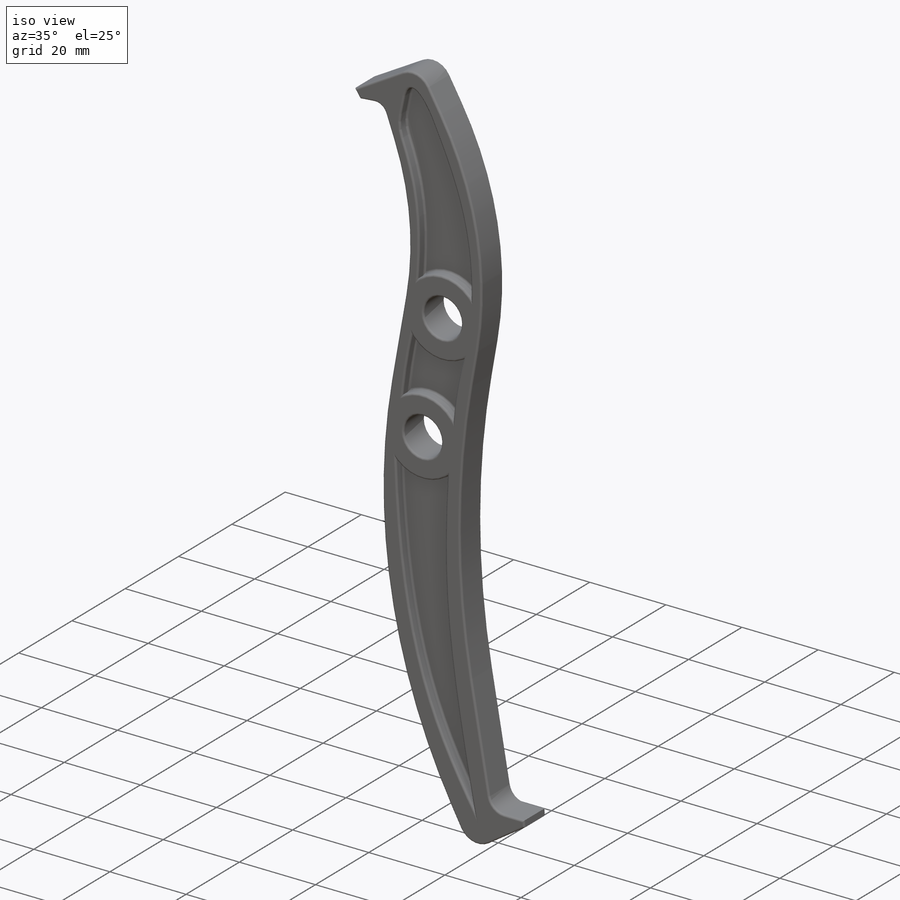
[diagram: iso view]
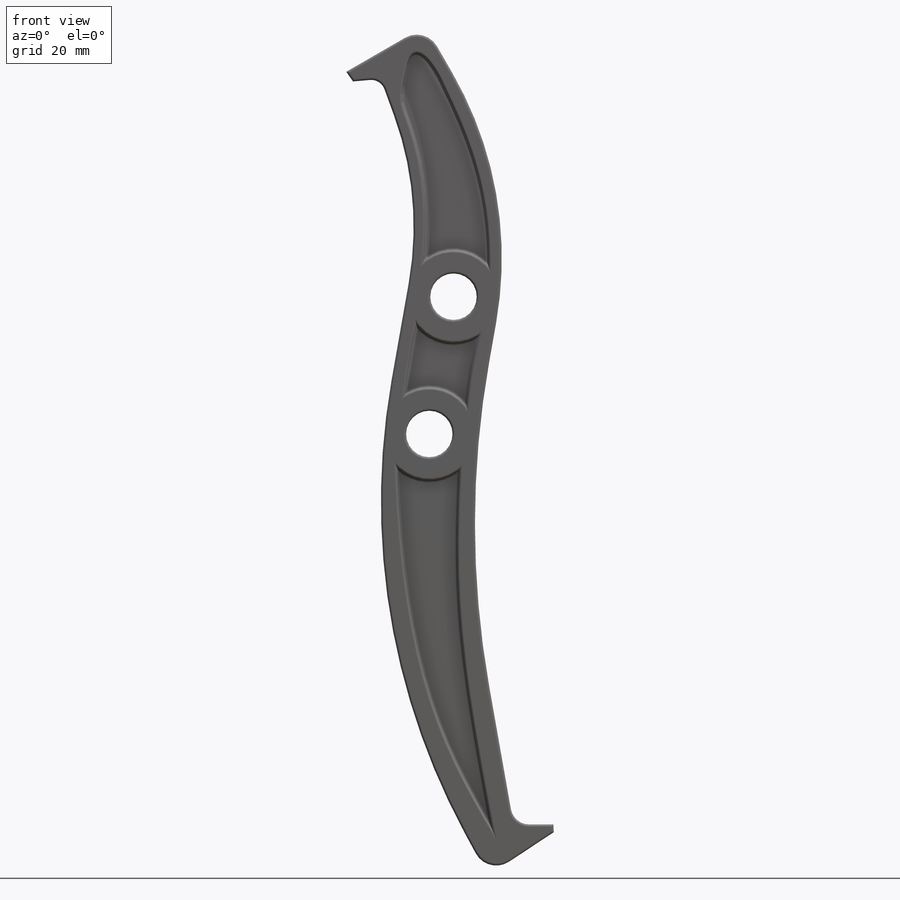
[diagram: front view]
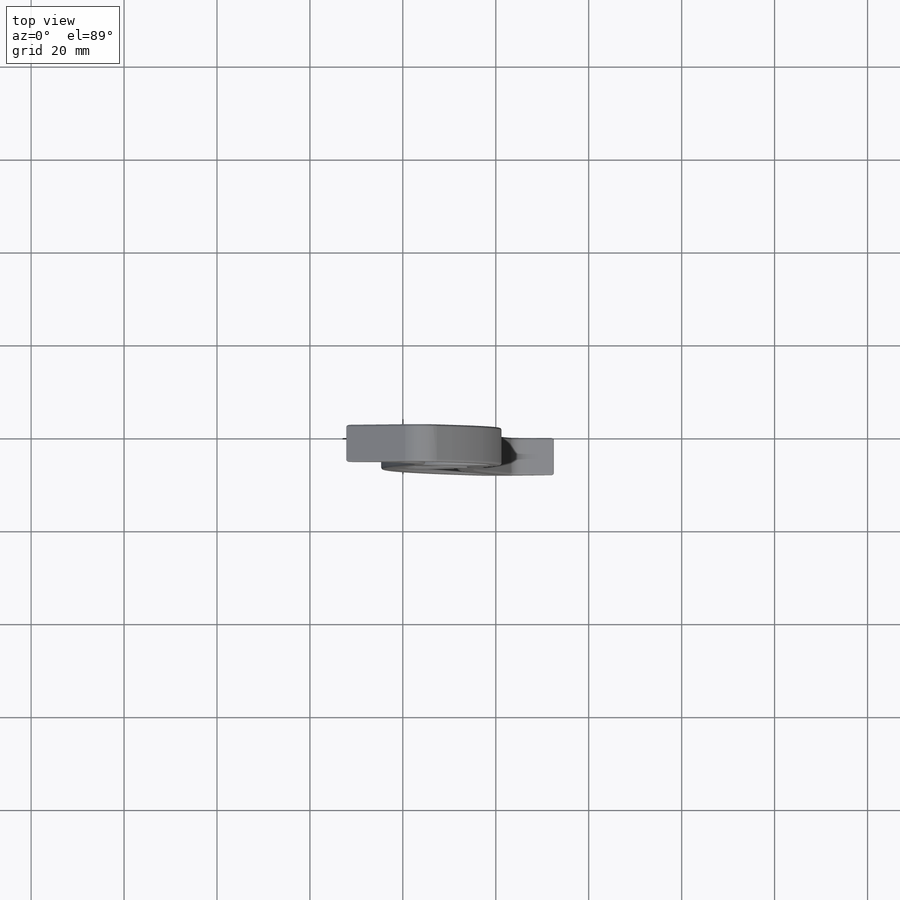
[diagram: top view]
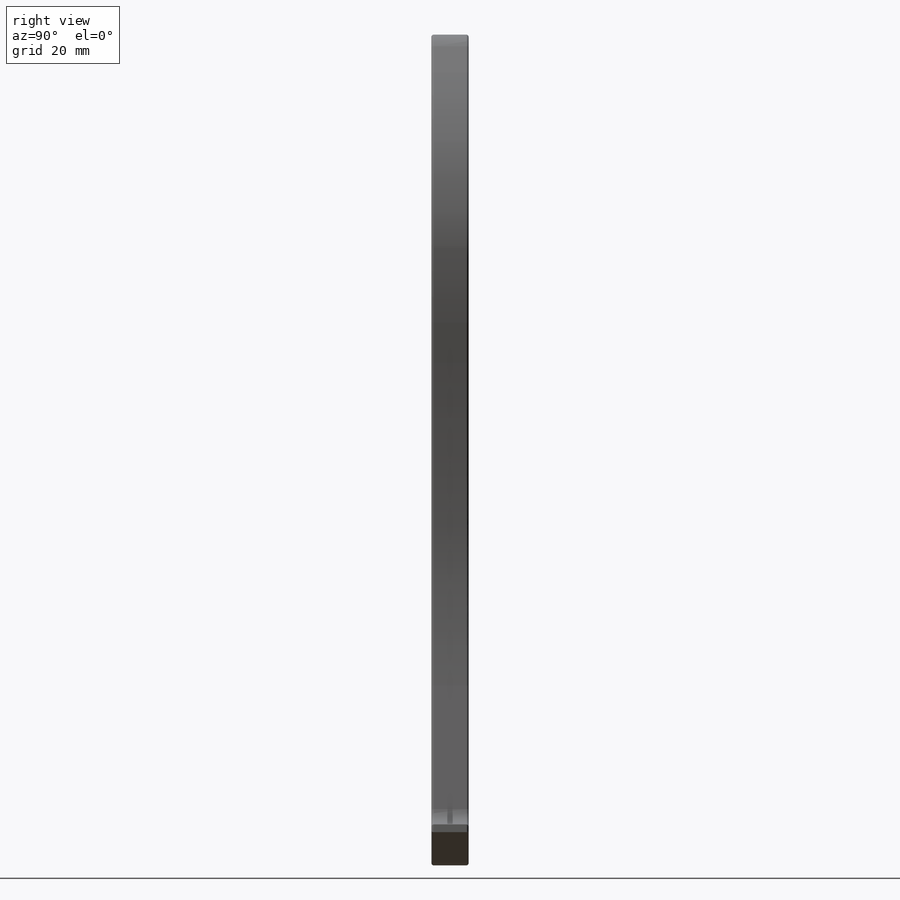
[diagram: right view]
SOLIDWORKS PART (.sldprt)
format: sldprt  version: not decoded by parser v0  size: 1,107,456 bytes
history: native  units: mm
features: fillet x10, plane x4, sketch x3, chamfer x2, cut_extrude x2, material x1, extrude x1 (+12 scaffold rows collapsed)
feature tree (35):
  scaffold x12  (default folders/planes/origin — collapsed)
  material  "Material <sin especificar>"
  plane  "Alzado"
  plane  "Planta"
  plane  "Vista lateral"
  sketch  "Sketch1"  dims[c1.D1=10.0mm c1.D2=60.0mm c1.D4=60.0mm c2.D2=10.0mm c2.D4=20.0mm c2.D5=20.0mm c2.D1=30.0mm c3.D2=10.0mm c3.D3=10.0mm c3.D4=30.0mm c3.D1=10.0mm c4.D2=10.0mm c4.D21=10.0mm c4.D22=10.0mm c4.D3=~39.456221mm c4.D4=~39.456221mm c5.D4=82.0deg c5.D3=~11.167352mm c5.D1=10.0mm c5.D2=10.0mm c6.D3=110.0deg c7.D3=67.0mm c7.D4=75.0mm c7.D5=25.0mm c7.D6=~65.205417mm c8.D6=10.0deg c9.D6=14.0mm c9.D7=87.0mm c9.D3=115.0mm c9.D4=30.0mm c10.D3=14.0mm c10.D4=14.0mm c11.D3=~14.810315mm c12.D3=160.0deg c12.D4=~11.157654mm c12.D5=20.0mm c12.D6=55.0mm c12.D7=10.0mm c12.D8=20.0mm c13.D8=275.0deg c13.D9=~37.852014mm c13.D2=30.0mm c13.D4=~5.209445mm c14.D2=~23.079898mm c14.D4=~58.227884mm c14.D5=~21.364105mm c14.D6=~46.839209mm c14.D7=~45.794127mm c14.D8=~14.223875mm c14.D9=~6.068824mm c14.D10=~15.659378mm c14.D11=~6.387198mm c14.D12=~19.396681mm c14.D13=~84.031385mm c14.D14=~95.060805mm c14.D15=~40.060805mm c14.D16=~17.218067mm c14.D17=~6.734108mm c14.D18=~18.13095mm c14.D19=~12.604723mm c14.D20=~29.288604mm c14.D21=10.0mm c14.D22=10.0mm]
  extrude  "Extrude2"  Depth=8mm
  fillet  "Fillet3"  Radius=80mm
  fillet  "Fillet4"  Radius=70mm
  fillet  "Fillet5"  Radius=5mm
  chamfer  "Chamfer1"  Distance=6mm Angle=60deg
  fillet  "Fillet6"  Radius=3mm
  fillet  "Fillet7"  Radius=150mm
  fillet  "Fillet8"  Radius=200mm
  fillet  "Fillet9"  Radius=5mm
  fillet  "Fillet10"  Radius=4mm
  chamfer  "Chamfer2"  Distance=3mm Angle=60deg
  sketch  "Sketch2"  dims[c1.D1=20.0mm c1.D2=20.0mm c2.D1=10.0mm c2.D3=20.0mm c2.D15=~25.730205mm c3.D15=~46.26604mm c3.D17=200.0mm c3.D19=~72.155971mm c3.D3=10.0mm c3.D4=7.5mm c3.D5=6.5mm c3.D6=3.0mm c3.D7=47.0mm c3.D8=40.0mm c3.D9=10.5mm c3.D10=50.0mm c3.D11=10.0mm c3.D12=45.5mm c3.D13=5.5mm c3.D14=6.0mm c4.D15=85.0deg c5.D15=6.0mm c5.D16=8.5mm c5.D17=85.0mm c5.D18=13.5mm c5.D19=6.5mm c5.D20=7.0mm]
  plane  "Plane1"  Offset=0mm
  cut_extrude  "Cut-Extrude2"  Depth=2.5mm
  sketch  "Sketch6"  dims[D1=0.0mm D2=0.0mm D3=0.0mm]
  cut_extrude  "Cut-Extrude3"  Depth=2.5mm
  fillet  "Fillet11"  Radius=0.5mm
  fillet  "Fillet12"  Radius=0.5mm
decode coverage: 18 of 18 modeling features carry decoded parameters
note: ~ marks probable driven/reference dimensions
note: suppression state not decoded; provenance and decode notes live in map.json
